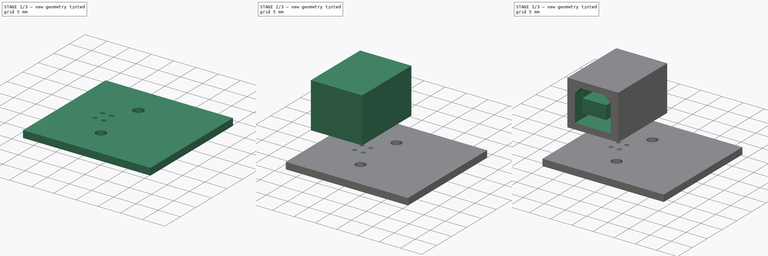
[diagram: build sequence overview — one tinted view per stage of 3, left to right]
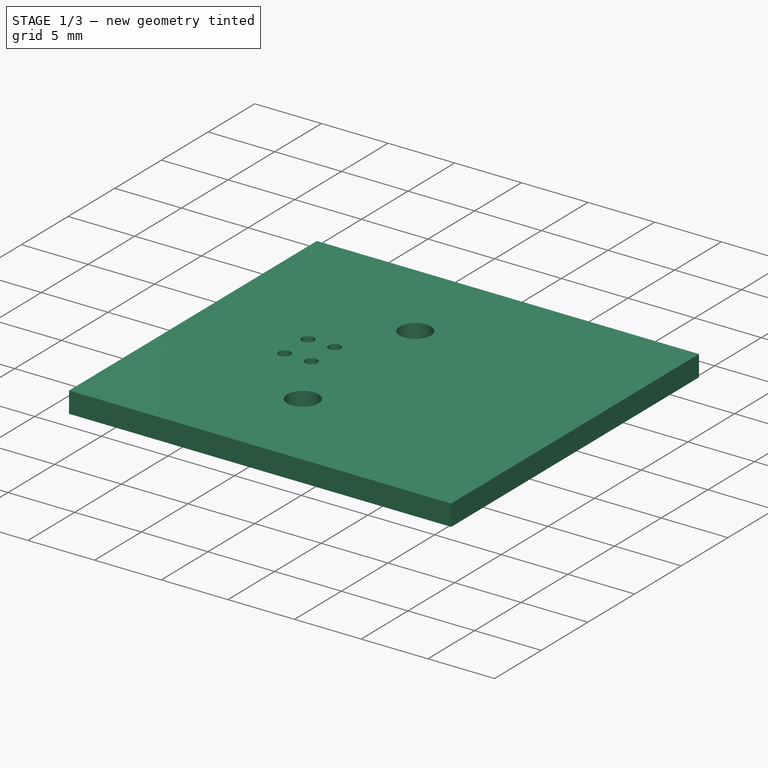
[diagram: stage 1 of 3 — iso view after this stage's code; geometry added in this stage tinted green]
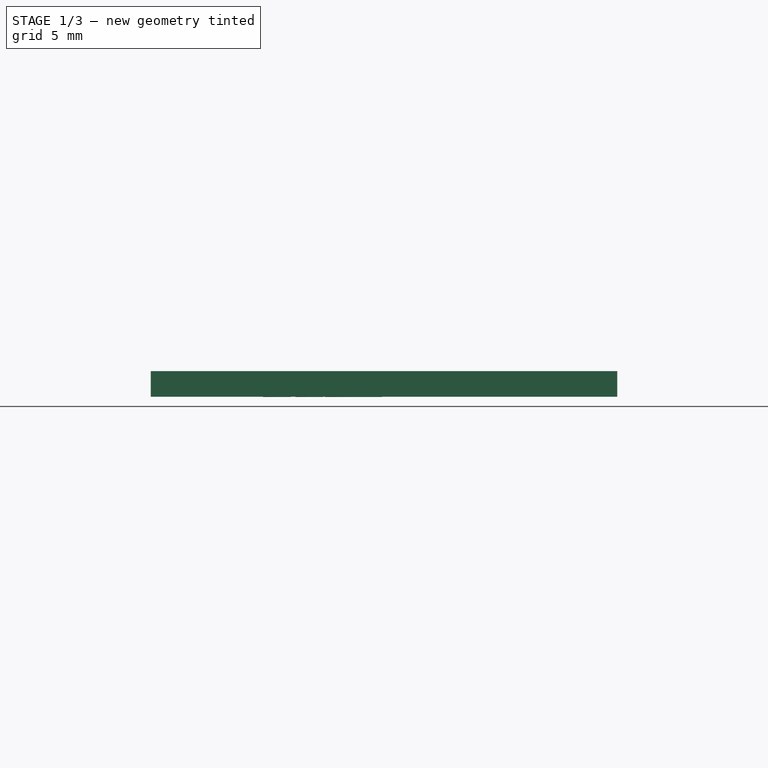
[diagram: stage 1 of 3 — front view after this stage's code; geometry added in this stage tinted green]
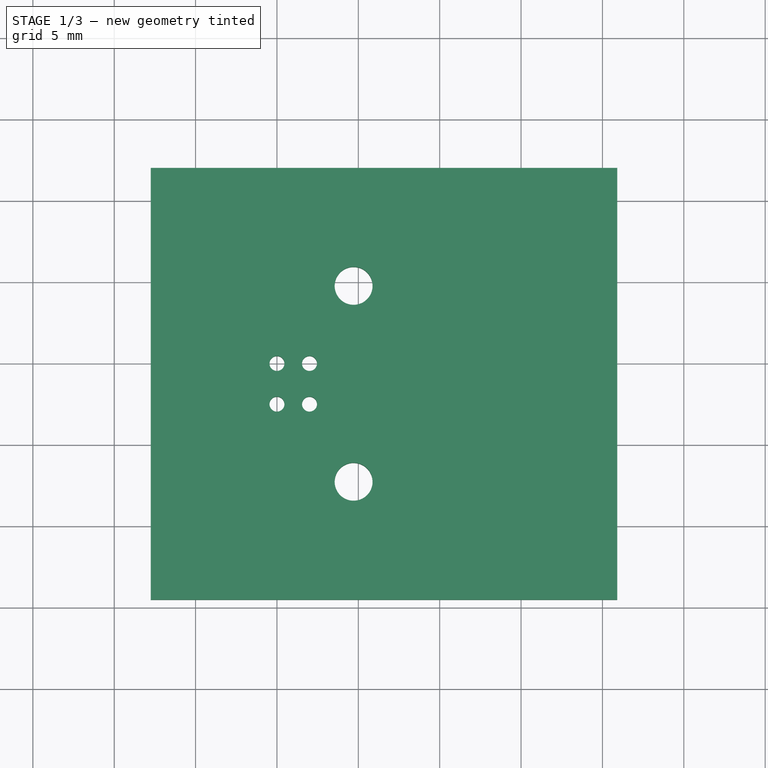
[diagram: stage 1 of 3 — top view after this stage's code; geometry added in this stage tinted green]
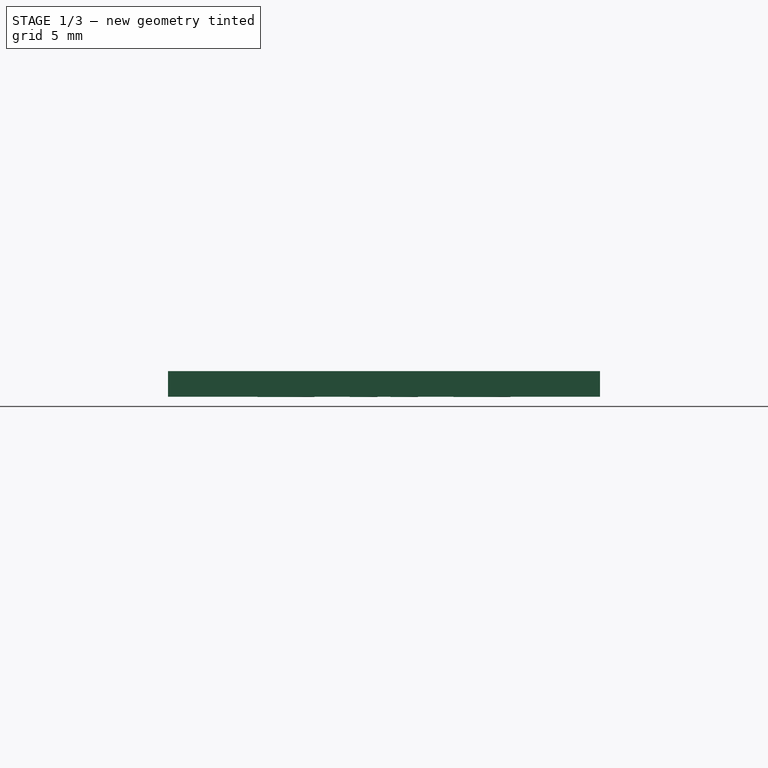
[diagram: stage 1 of 3 — right view after this stage's code; geometry added in this stage tinted green]
FCSTD DOCUMENT  (FreeCAD 0.19R22665 (Git))
Label: usb_b_connector
License: All rights reserved
LicenseURL: http://en.wikipedia.org/wiki/All_rights_reserved
objects: Part::FeaturePython×7, Sketcher::SketchObject×5, PartDesign::Pad×3, PartDesign::Pocket×1, PartDesign::Body×1, App::DocumentObjectGroup×1, Part::Feature×1
note: 22 computed .brp shape members not serialized (recipe doc carries the construction recipe); baked Part::Feature solids carry a one-line shape summary decoded from their .brp

FEATURE [Part::FeaturePython] BotPads  # a2plus imported part (geometry in sourceFile) (typed FeaturePython)
  fixedPosition = true
FEATURE [Part::FeaturePython] THPs  label="PTHs"  # a2plus imported part (geometry in sourceFile) (typed FeaturePython)
  fixedPosition = true
FEATURE [Part::FeaturePython] newPCB  label="Pcb"  # a2plus imported part (geometry in sourceFile) (typed FeaturePython)
  fixedPosition = true
FEATURE [App::DocumentObjectGroup] Connector_USB_USB_B_OST_USB_B1HSxx_Horizontal_fp
  Group = -> [FCrtYd_lines,FFab_lines,Filk_lines,TopPads,BotPads,THPs,newPCB]
FEATURE [Part::Feature] Shape  label="usb_b_conn"
  shape: bbox 16.5 x 14.34 x 14.52 mm, 44 faces (baked)
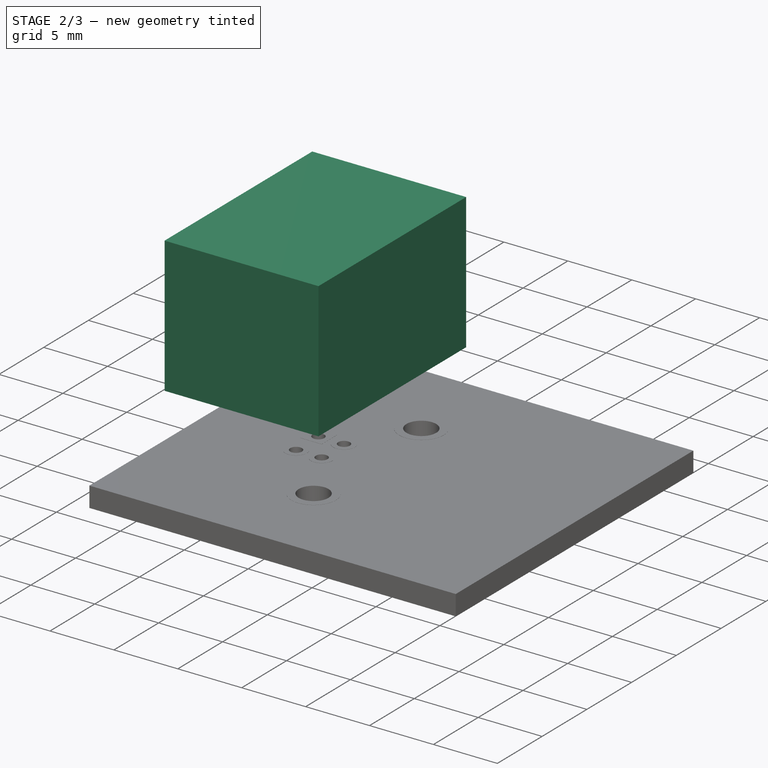
[diagram: stage 2 of 3 — iso view after this stage's code; geometry added in this stage tinted green]
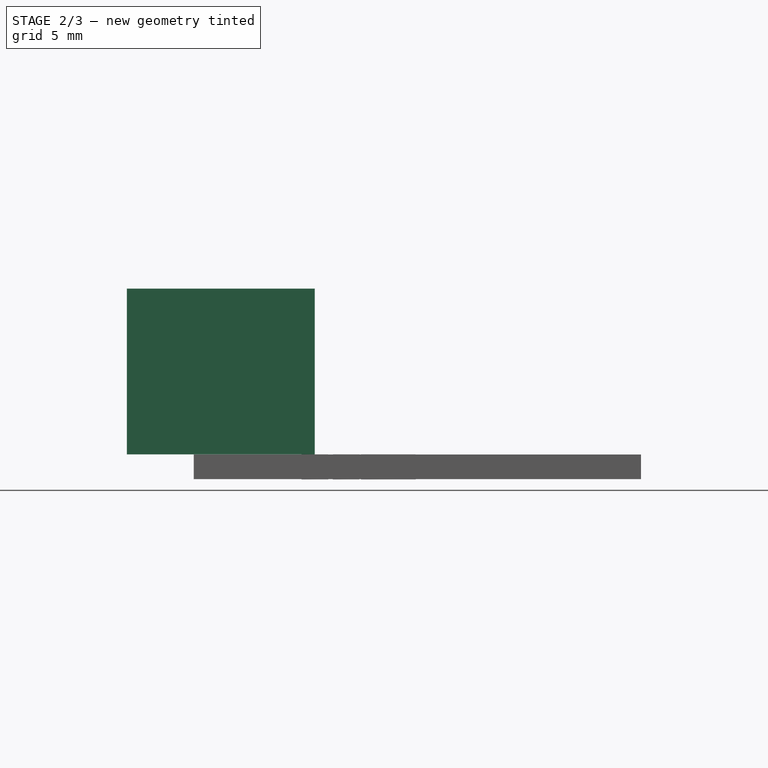
[diagram: stage 2 of 3 — front view after this stage's code; geometry added in this stage tinted green]
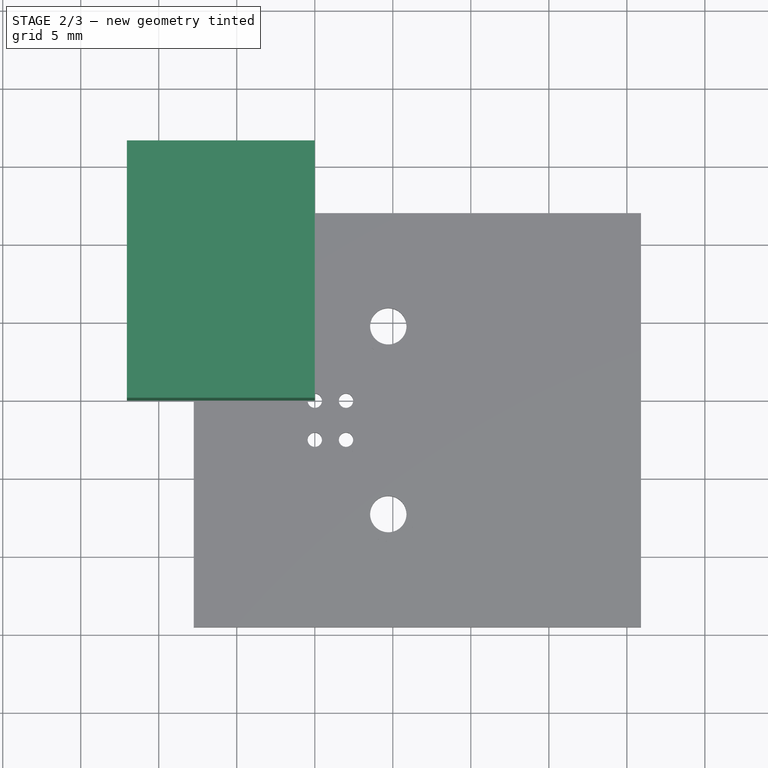
[diagram: stage 2 of 3 — top view after this stage's code; geometry added in this stage tinted green]
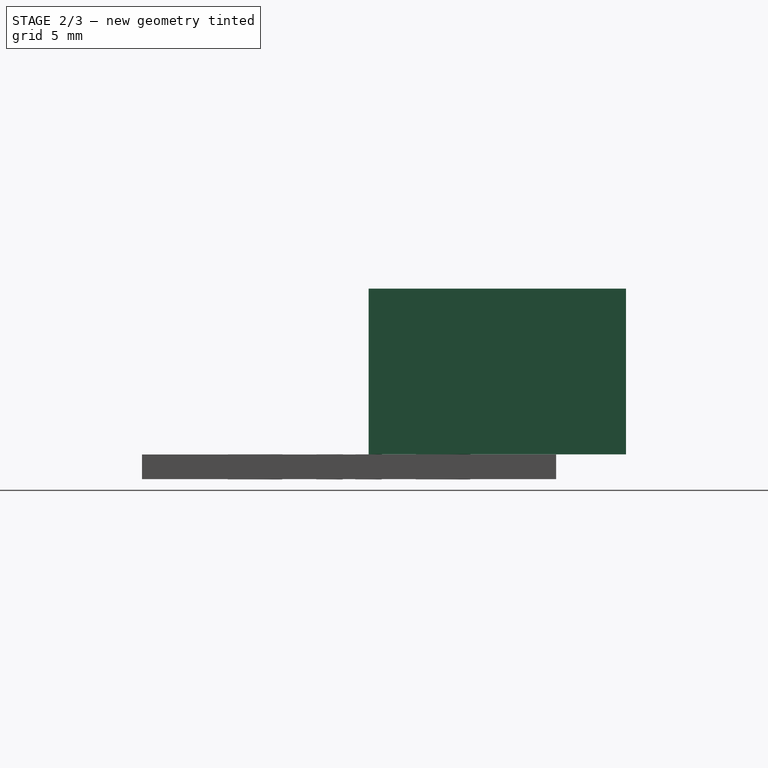
[diagram: stage 2 of 3 — right view after this stage's code; geometry added in this stage tinted green]
FEATURE [Sketcher::SketchObject] Sketch
  MapMode = 5
  Support = -> [XY_Plane]
  sketch-geometry (4):
    g0: LineSegment StartX=-12.04 StartY=16.5 StartZ=0 EndX=0 EndY=16.5 EndZ=0
    g1: LineSegment StartX=0 StartY=16.5 StartZ=0 EndX=0 EndY=0 EndZ=0
    g2: LineSegment StartX=0 StartY=0 StartZ=0 EndX=-12.04 EndY=0 EndZ=0
    g3: LineSegment StartX=-12.04 StartY=0 StartZ=0 EndX=-12.04 EndY=16.5 EndZ=0
  constraints (11):
    c: Coincident(g0,g1)
    c: Coincident(g1,g2)
    c: Coincident(g2,g3)
    c: Coincident(g3,g0)
    c: Horizontal(g0)
    c: Horizontal(g2)
    c: Vertical(g1)
    c: Vertical(g3)
    c: Coincident(g1,g-1)
    c: Distance(g0) = 12.04
    c: Distance(g3) = 16.5
FEATURE [PartDesign::Pad] Pad
  Direction = (1,1,1)
  Length = 10.62
  Length2 = 100
  Profile = -> Sketch
  Type = 0
FEATURE [Sketcher::SketchObject] Sketch005
  ExternalGeometry = -> [Pad002]
  MapMode = 5
  Placement = pos=(0,0,0) rot=(1,0,0;3.14159rad)
  Support = -> [Pad002]
  sketch-geometry (2):
    g0: Circle CenterX=-12.04 CenterY=-10.28 CenterZ=0 NormalX=0 NormalY=0 NormalZ=1 AngleXU=0 Radius=1.15
    g1: Circle CenterX=0 CenterY=-10.28 CenterZ=0 NormalX=0 NormalY=0 NormalZ=1 AngleXU=0 Radius=1.15
  constraints (6):
    c: Diameter(g0) = 2.3
    c: Equal(g0,g1) = 2.3
    c: PointOnObject(g0,g-3)
    c: PointOnObject(g1,g-4)
    c: Horizontal(g0,g1)
    c: DistanceY(g0,g-6) = 10.28
FEATURE [PartDesign::Body] Body
  Group = -> [Sketch,Pad,Sketch001,Pocket,Sketch002,Pad001,Sketch004,Pad002,Sketch005]
  Origin = -> Origin
FEATURE [Part::FeaturePython] FCrtYd_lines  label="FCrtYd"  # a2plus imported part (geometry in sourceFile) (typed FeaturePython)
  fixedPosition = true
FEATURE [Part::FeaturePython] FFab_lines  label="FFab"  # a2plus imported part (geometry in sourceFile) (typed FeaturePython)
  fixedPosition = true
FEATURE [Part::FeaturePython] Filk_lines  label="FrontSilk"  # a2plus imported part (geometry in sourceFile) (typed FeaturePython)
  fixedPosition = true
FEATURE [Part::FeaturePython] TopPads  # a2plus imported part (geometry in sourceFile) (typed FeaturePython)
  fixedPosition = true
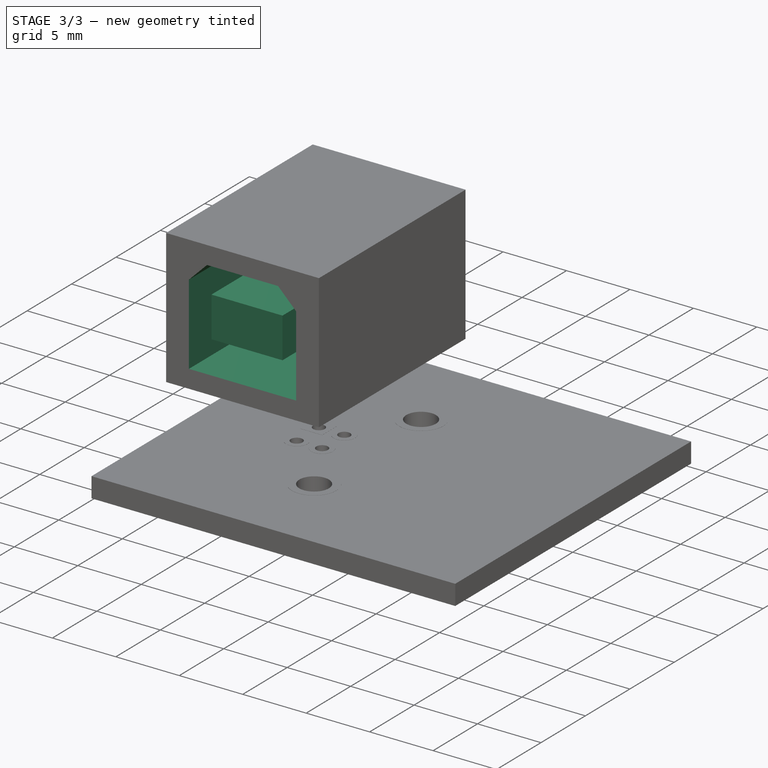
[diagram: stage 3 of 3 — iso view after this stage's code; geometry added in this stage tinted green]
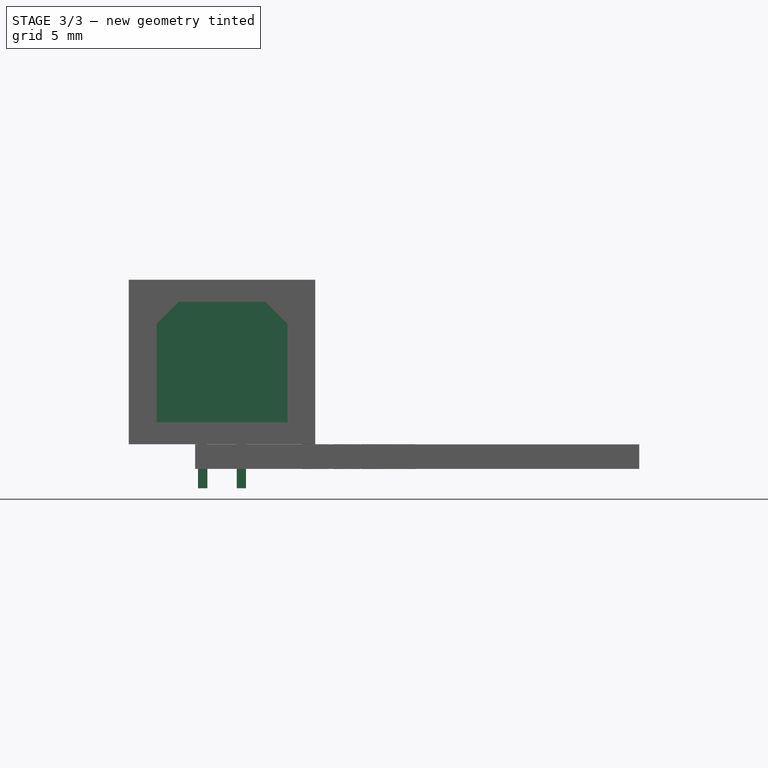
[diagram: stage 3 of 3 — front view after this stage's code; geometry added in this stage tinted green]
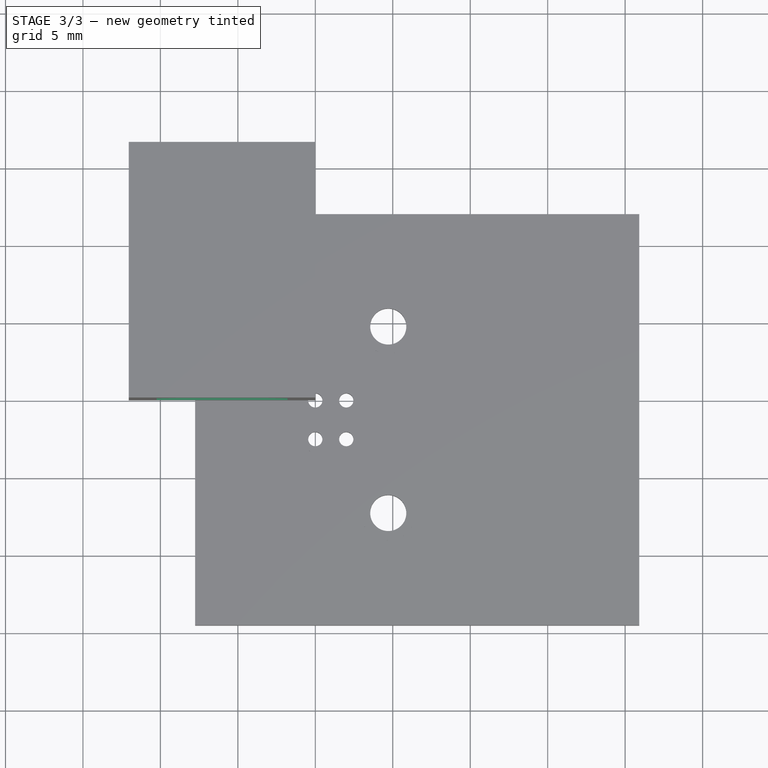
[diagram: stage 3 of 3 — top view after this stage's code; geometry added in this stage tinted green]
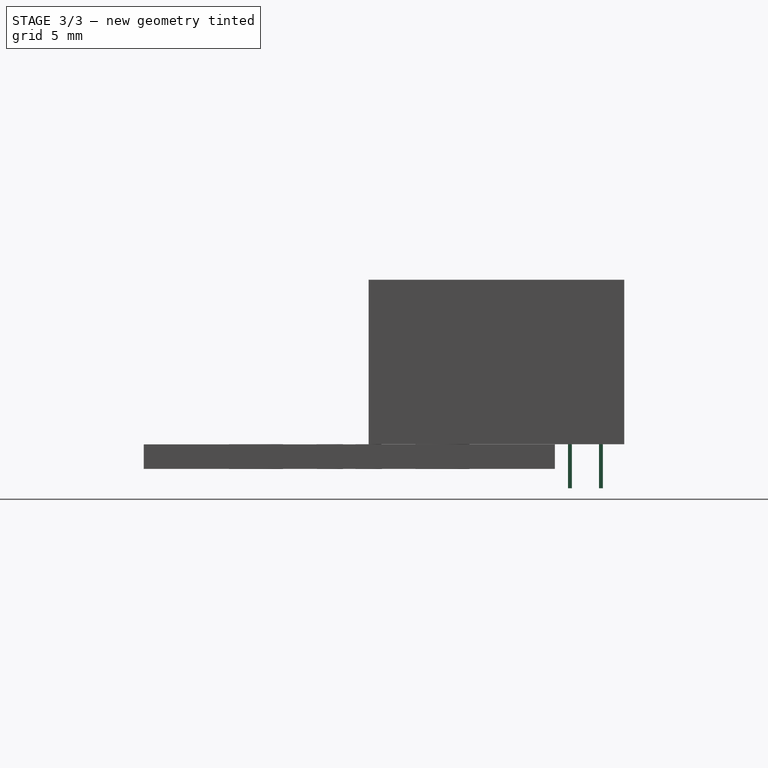
[diagram: stage 3 of 3 — right view after this stage's code; geometry added in this stage tinted green]
FEATURE [Sketcher::SketchObject] Sketch001
  ExternalGeometry = -> [Pad]
  MapMode = 5
  Placement = pos=(0,0,0) rot=(1,0,0;1.5708rad)
  Support = -> [Pad]
  sketch-geometry (9):
    g0: LineSegment StartX=-10.245 StartY=7.775 StartZ=0 EndX=-8.82 EndY=9.2 EndZ=0
    g1: LineSegment StartX=-8.82 StartY=9.2 StartZ=0 EndX=-3.22 EndY=9.2 EndZ=0
    g2: LineSegment StartX=-3.22 StartY=9.2 StartZ=0 EndX=-1.795 EndY=7.775 EndZ=0
    g3: LineSegment StartX=-1.795 StartY=7.775 StartZ=0 EndX=-1.795 EndY=1.42 EndZ=0
    g4: LineSegment StartX=-1.795 StartY=1.42 StartZ=0 EndX=-10.245 EndY=1.42 EndZ=0
    g5: LineSegment StartX=-10.245 StartY=1.42 StartZ=0 EndX=-10.245 EndY=7.775 EndZ=0
    g6: LineSegment [constr] StartX=-6.02 StartY=10.62 StartZ=0 EndX=-6.02 EndY=0 EndZ=0
    g7: LineSegment [constr] StartX=-12.04 StartY=5.31 StartZ=0 EndX=0 EndY=5.31 EndZ=0
    g8: LineSegment [constr] StartX=-8.82 StartY=9.2 StartZ=0 EndX=-8.82 EndY=1.42 EndZ=0
  constraints (24):
    c: Coincident(g0,g1)
    c: Coincident(g1,g2)
    c: Coincident(g2,g3)
    c: Coincident(g3,g4)
    c: Coincident(g4,g5)
    c: Coincident(g5,g0)
    c: Vertical(g5)
    c: Vertical(g3)
    c: PointOnObject(g6,g-3)
    c: PointOnObject(g6,g-4)
    c: Symmetric(g-3,g-3,g6)
    c: Symmetric(g0,g1,g6)
    c: Distance(g1) = 5.6
    c: Distance(g4) = 8.45
    c: DistanceY(g4,g0) = 7.78
    c: Equal(g0,g2)
    c: PointOnObject(g7,g-5)
    c: PointOnObject(g7,g-6)
    c: Symmetric(g-5,g-5,g7)
    c: Symmetric(g4,g3,g6)
    c: Angle(g5,g0) = 2.35619
    c: Coincident(g8,g0)
    c: PointOnObject(g8,g4)
    c: Symmetric(g0,g8,g7)
FEATURE [PartDesign::Pocket] Pocket
  BaseFeature = -> Pad
  Length = 8.88
  Length2 = 100
  Profile = -> Sketch001
  Type = 0
FEATURE [Sketcher::SketchObject] Sketch002
  ExternalGeometry = -> [Pocket]
  MapMode = 5
  Placement = pos=(0,8.88,-2e-15) rot=(1,0,0;1.5708rad)
  Support = -> [Pocket]
  sketch-geometry (7):
    g0: LineSegment StartX=-8.82 StartY=6.9 StartZ=0 EndX=-3.22 EndY=6.9 EndZ=0
    g1: LineSegment StartX=-3.22 StartY=6.9 StartZ=0 EndX=-3.22 EndY=3.72 EndZ=0
    g2: LineSegment StartX=-3.22 StartY=3.72 StartZ=0 EndX=-8.82 EndY=3.72 EndZ=0
    g3: LineSegment StartX=-8.82 StartY=3.72 StartZ=0 EndX=-8.82 EndY=6.9 EndZ=0
    g4: LineSegment [constr] StartX=-6.02 StartY=9.2 StartZ=0 EndX=-6.02 EndY=1.42 EndZ=0
    g5: LineSegment [constr] StartX=-10.245 StartY=5.31 StartZ=0 EndX=-1.795 EndY=5.31 EndZ=0
    g6: LineSegment [constr] StartX=-8.82 StartY=9.2 StartZ=0 EndX=-8.82 EndY=1.42 EndZ=0
  constraints (19):
    c: Coincident(g0,g1)
    c: Coincident(g1,g2)
    c: Coincident(g2,g3)
    c: Coincident(g3,g0)
    c: Horizontal(g2)
    c: Vertical(g1)
    c: Vertical(g3)
    c: Distance(g0) = 5.6
    c: Distance(g1) = 3.18
    c: PointOnObject(g4,g-5)
    c: PointOnObject(g4,g-8)
    c: PointOnObject(g5,g-3)
    c: PointOnObject(g5,g-7)
    c: Symmetric(g0,g2,g5)
    c: Symmetric(g0,g0,g4)
    c: Symmetric(g-5,g-6,g4)
    c: Coincident(g6,g-5)
    c: PointOnObject(g6,g-8)
    c: Symmetric(g6,g6,g5)
FEATURE [PartDesign::Pad] Pad001
  BaseFeature = -> Pocket
  Direction = (1,1,1)
  Length = 8.38
  Length2 = 100
  Profile = -> Sketch002
  Type = 0
FEATURE [Sketcher::SketchObject] Sketch004
  ExternalGeometry = -> [Pad001]
  MapMode = 5
  Placement = pos=(0,0,0) rot=(1,0,0;3.14159rad)
  Support = -> [Pad001]
  sketch-geometry (21):
    g0: LineSegment StartX=-7.57 StartY=-12.865 StartZ=0 EndX=-6.97 EndY=-12.865 EndZ=0
    g1: LineSegment StartX=-6.97 StartY=-12.865 StartZ=0 EndX=-6.97 EndY=-13.115 EndZ=0
    g2: LineSegment StartX=-6.97 StartY=-13.115 StartZ=0 EndX=-7.57 EndY=-13.115 EndZ=0
    g3: LineSegment StartX=-7.57 StartY=-13.115 StartZ=0 EndX=-7.57 EndY=-12.865 EndZ=0
    g4: LineSegment StartX=-5.07 StartY=-12.865 StartZ=0 EndX=-4.47 EndY=-12.865 EndZ=0
    g5: LineSegment StartX=-4.47 StartY=-12.865 StartZ=0 EndX=-4.47 EndY=-13.115 EndZ=0
    g6: LineSegment StartX=-4.47 StartY=-13.115 StartZ=0 EndX=-5.07 EndY=-13.115 EndZ=0
    g7: LineSegment StartX=-5.07 StartY=-13.115 StartZ=0 EndX=-5.07 EndY=-12.865 EndZ=0
    g8: LineSegment StartX=-7.57 StartY=-14.865 StartZ=0 EndX=-6.97 EndY=-14.865 EndZ=0
    g9: LineSegment StartX=-6.97 StartY=-14.865 StartZ=0 EndX=-6.97 EndY=-15.115 EndZ=0
    g10: LineSegment StartX=-6.97 StartY=-15.115 StartZ=0 EndX=-7.57 EndY=-15.115 EndZ=0
    g11: LineSegment StartX=-7.57 StartY=-15.115 StartZ=0 EndX=-7.57 EndY=-14.865 EndZ=0
    g12: LineSegment StartX=-5.07 StartY=-14.865 StartZ=0 EndX=-4.47 EndY=-14.865 EndZ=0
    g13: LineSegment StartX=-4.47 StartY=-14.865 StartZ=0 EndX=-4.47 EndY=-15.115 EndZ=0
    g14: LineSegment StartX=-4.47 StartY=-15.115 StartZ=0 EndX=-5.07 EndY=-15.115 EndZ=0
    g15: LineSegment StartX=-5.07 StartY=-15.115 StartZ=0 EndX=-5.07 EndY=-14.865 EndZ=0
    g16: LineSegment [constr] StartX=-7.27 StartY=-12.865 StartZ=0 EndX=-7.27 EndY=-15.115 EndZ=0
    g17: LineSegment [constr] StartX=-4.77 StartY=-12.865 StartZ=0 EndX=-4.77 EndY=-15.115 EndZ=0
    g18: LineSegment [constr] StartX=-7.57 StartY=-12.99 StartZ=0 EndX=-4.47 EndY=-12.99 EndZ=0
    g19: LineSegment [constr] StartX=-7.57 StartY=-14.99 StartZ=0 EndX=-4.47 EndY=-14.99 EndZ=0
    g20: LineSegment [constr] StartX=-6.02 StartY=0 StartZ=0 EndX=-6.02 EndY=-16.5 EndZ=0
  constraints (63):
    c: Coincident(g0,g1)
    c: Coincident(g1,g2)
    c: Coincident(g2,g3)
    c: Coincident(g3,g0)
    c: Horizontal(g0)
    c: Horizontal(g2)
    c: Vertical(g1)
    c: Vertical(g3)
    c: Distance(g0) = 0.6
    c: Distance(g3) = 0.25
    c: Coincident(g4,g5)
    c: Coincident(g5,g6)
    c: Coincident(g6,g7)
    c: Coincident(g7,g4)
    c: Horizontal(g4)
    c: Vertical(g5)
    c: Vertical(g7)
    c: Equal(g0,g4) = 0.6
    c: Equal(g3,g7) = 0.25
    c: Coincident(g8,g9)
    c: Coincident(g9,g10)
    c: Coincident(g10,g11)
    c: Coincident(g11,g8)
    c: Horizontal(g8)
    c: Horizontal(g10)
    c: Vertical(g9)
    c: Vertical(g11)
    c: Coincident(g12,g13)
    c: Coincident(g13,g14)
    c: Coincident(g14,g15)
    c: Coincident(g15,g12)
    c: Horizontal(g12)
    c: Horizontal(g14)
    c: Vertical(g13)
    c: Vertical(g15)
    c: Equal(g8,g0)
    c: Equal(g1,g9)
    c: Equal(g5,g1)
    c: Equal(g1,g13)
    c: Equal(g12,g0)
    c: Equal(g4,g0)
    c: DistanceY(g12,g8) = 0
    c: DistanceX(g2,g8) = 0
    c: DistanceX(g12,g6) = 0
    c: PointOnObject(g16,g0)
    c: PointOnObject(g16,g10)
    c: Symmetric(g10,g9,g16)
    c: PointOnObject(g17,g4)
    c: PointOnObject(g17,g14)
    c: Symmetric(g4,g4,g17)
    c: DistanceX(g16,g17) = 2.5
    c: PointOnObject(g18,g5)
    c: PointOnObject(g19,g13)
    c: PointOnObject(g18,g3)
    c: Symmetric(g0,g2,g18)
    c: Symmetric(g8,g10,g19)
    c: DistanceY(g19,g18) = 2
    c: PointOnObject(g20,g-3)
    c: PointOnObject(g20,g-4)
    c: Symmetric(g-6,g-1,g20)
    c: Symmetric(g0,g4,g20)
    c: PointOnObject(g19,g11)
    c: DistanceY(g18,g20) = 12.99
FEATURE [PartDesign::Pad] Pad002
  BaseFeature = -> Pad001
  Direction = (1,1,1)
  Length = 2.84
  Length2 = 100
  Profile = -> Sketch004
  Type = 0
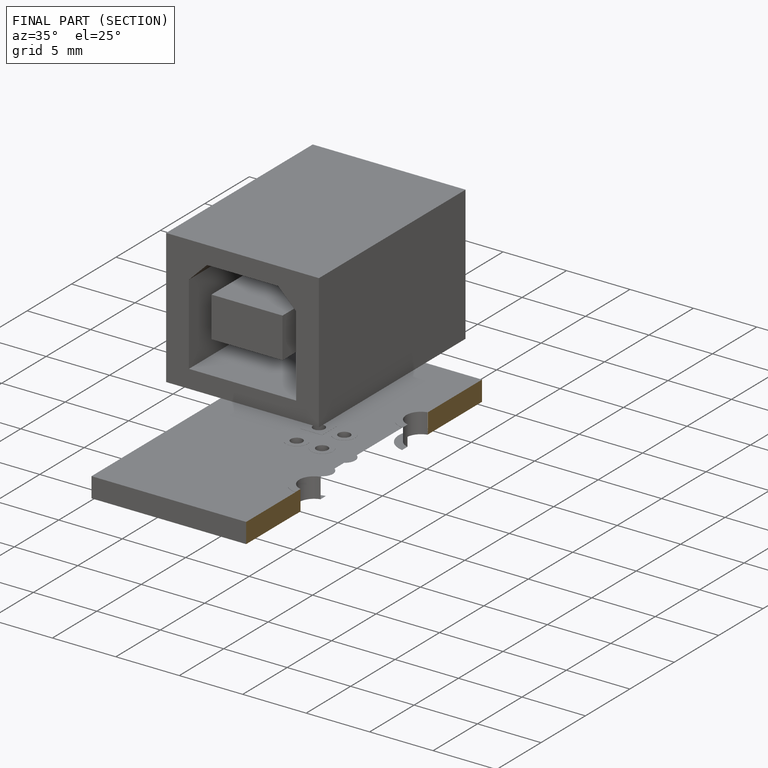
[diagram: finished part — half-section view (interior)]
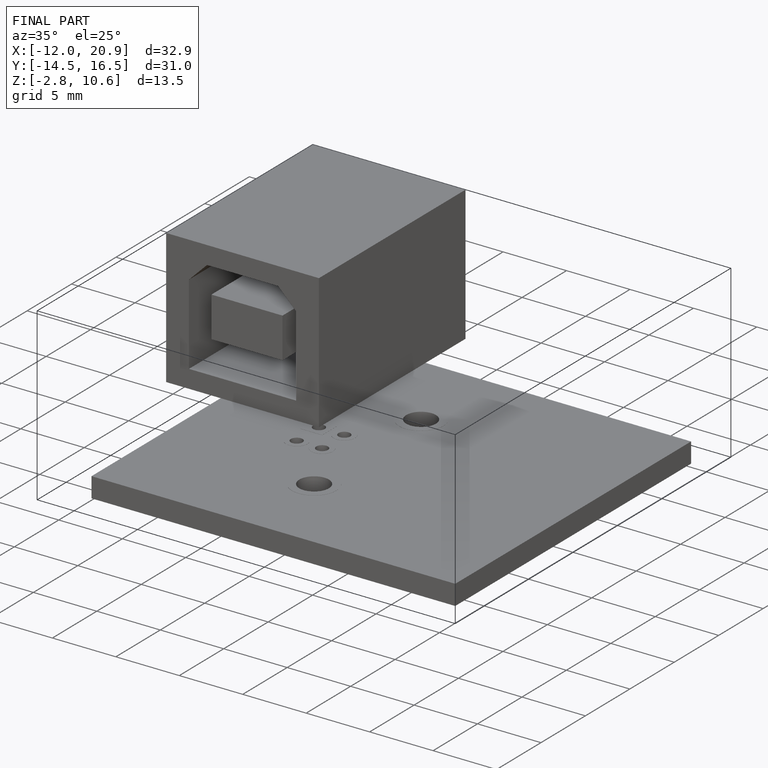
[diagram: finished part — iso view with bounding-box wireframe]
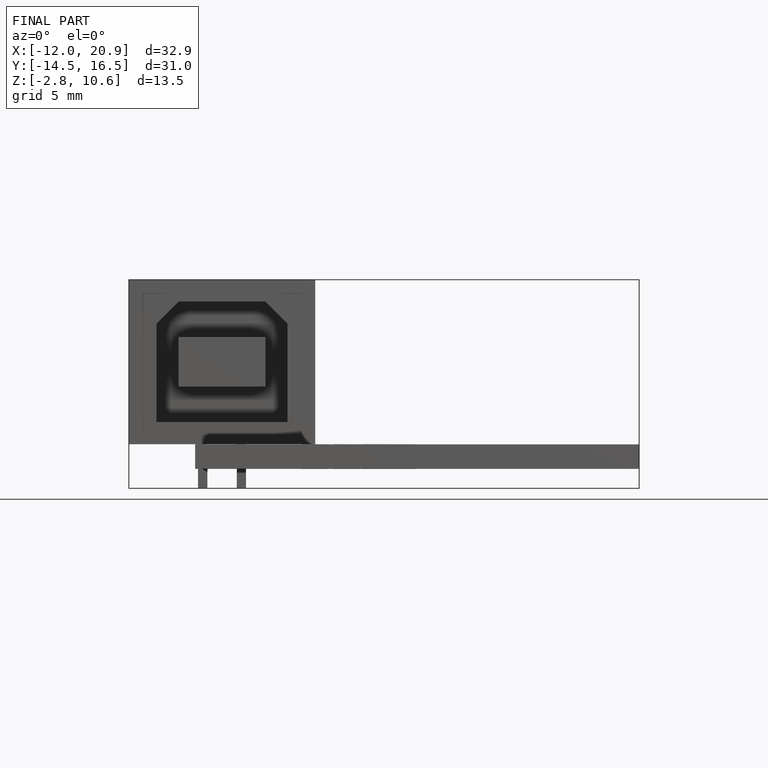
[diagram: finished part — front view with bounding-box wireframe]
